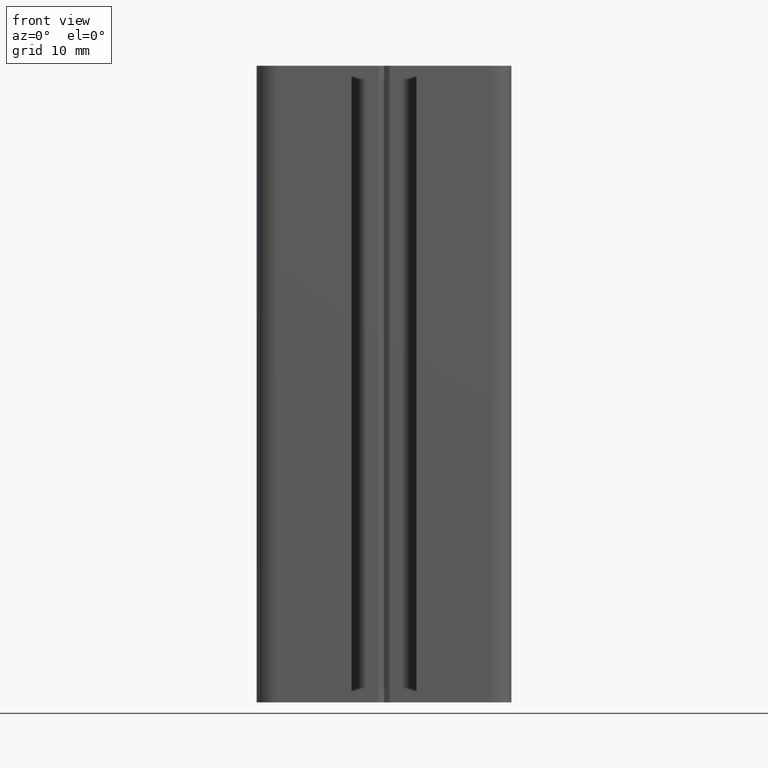
[diagram: clean part render]
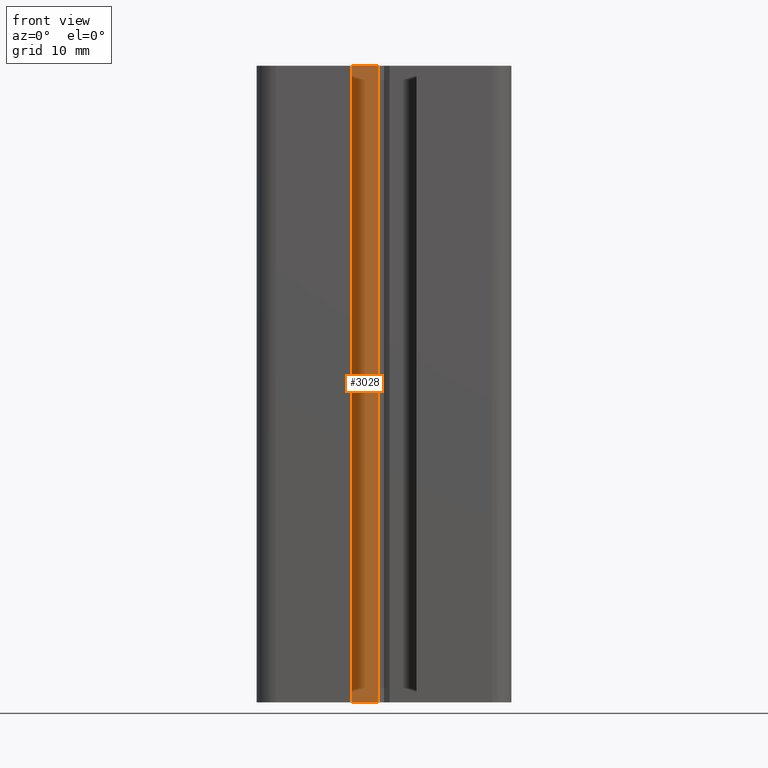
[diagram: same view with one face highlighted and labeled with its STEP entity id]
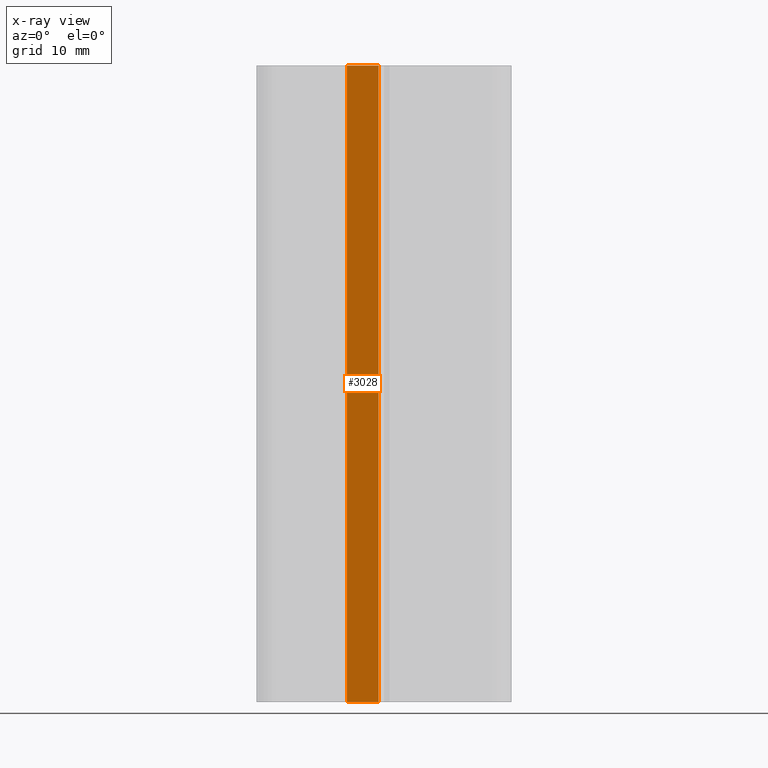
[diagram: x-ray of the same camera — body ghosted, the highlighted face saturated]
A machine part, front view. The second image highlights one B-rep face of the part: STEP entity #3028.
The next image is the same camera in x-ray: the body ghosted, the highlighted face saturated — about 0% of this face is hidden behind the body in this view.
In plain terms, the highlighted planar face has unit normal (0, 1, -0).
Its self-contained STEP definition (entity closure, byte-faithful):
#206 = DIRECTION ( 'NONE',  ( -0.0000000000000000000, -0.0000000000000000000, -1.000000000000000000 ) ) ;
#207 = VECTOR ( 'NONE', #206, 1000.000000000000000 ) ;
#208 = CARTESIAN_POINT ( 'NONE',  ( -0.8660263574587646600, -7.250000000000000000, 100.0000000000000000 ) ) ;
#211 = DIRECTION ( 'NONE',  ( -0.0000000000000000000, -0.0000000000000000000, -1.000000000000000000 ) ) ;
#212 = VECTOR ( 'NONE', #211, 1000.000000000000000 ) ;
#213 = CARTESIAN_POINT ( 'NONE',  ( -5.835786312549495300, -7.250000000000000000, 100.0000000000000000 ) ) ;
#214 = LINE ( 'NONE', #213, #212 ) ;
#216 = LINE ( 'NONE', #208, #207 ) ;
#1808 = CARTESIAN_POINT ( 'NONE',  ( -5.835786312549495300, -7.250000000000000000, 100.0000000000000000 ) ) ;
#1826 = DIRECTION ( 'NONE',  ( 1.000000000000000000, -0.0000000000000000000, -0.0000000000000000000 ) ) ;
#1827 = VECTOR ( 'NONE', #1826, 1000.000000000000000 ) ;
#1828 = CARTESIAN_POINT ( 'NONE',  ( -0.8660263574587646600, -7.250000000000000000, 100.0000000000000000 ) ) ;
#1829 = LINE ( 'NONE', #1828, #1827 ) ;
#1848 = CARTESIAN_POINT ( 'NONE',  ( -0.8660263574587646600, -7.250000000000000000, 100.0000000000000000 ) ) ;
#2495 = VERTEX_POINT ( 'NONE', #4931 ) ;
#2552 = EDGE_CURVE ( 'NONE', #2555, #2495, #4999, .T. ) ;
#2555 = VERTEX_POINT ( 'NONE', #5004 ) ;
#2990 = ORIENTED_EDGE ( 'NONE', *, *, #3022, .T. ) ;
#2995 = EDGE_LOOP ( 'NONE', ( #3029, #3027, #3007, #2990 ) ) ;
#3007 = ORIENTED_EDGE ( 'NONE', *, *, #5586, .F. ) ;
#3022 = EDGE_CURVE ( 'NONE', #5565, #2555, #214, .T. ) ;
#3026 = EDGE_CURVE ( 'NONE', #5577, #2495, #216, .T. ) ;
#3027 = ORIENTED_EDGE ( 'NONE', *, *, #3026, .F. ) ;
#3028 = ADVANCED_FACE ( 'NONE', ( #5551 ), #5084, .F. ) ;
#3029 = ORIENTED_EDGE ( 'NONE', *, *, #2552, .T. ) ;
#4931 = CARTESIAN_POINT ( 'NONE',  ( -0.8660263574587646600, -7.250000000000000000, 0.0000000000000000000 ) ) ;
#4991 = DIRECTION ( 'NONE',  ( 1.000000000000000000, -0.0000000000000000000, -0.0000000000000000000 ) ) ;
#4992 = VECTOR ( 'NONE', #4991, 1000.000000000000000 ) ;
#4999 = LINE ( 'NONE', #5015, #4992 ) ;
#5004 = CARTESIAN_POINT ( 'NONE',  ( -5.835786312549495300, -7.250000000000000000, 0.0000000000000000000 ) ) ;
#5015 = CARTESIAN_POINT ( 'NONE',  ( -0.8660263574587646600, -7.250000000000000000, 0.0000000000000000000 ) ) ;
#5079 = DIRECTION ( 'NONE',  ( 0.0000000000000000000, 0.0000000000000000000, 1.000000000000000000 ) ) ;
#5080 = DIRECTION ( 'NONE',  ( 0.0000000000000000000, 1.000000000000000000, -0.0000000000000000000 ) ) ;
#5081 = CARTESIAN_POINT ( 'NONE',  ( -0.8660263574587646600, -7.250000000000000000, 100.0000000000000000 ) ) ;
#5083 = AXIS2_PLACEMENT_3D ( 'NONE', #5081, #5080, #5079 ) ;
#5084 = PLANE ( 'NONE',  #5083 ) ;
#5551 = FACE_OUTER_BOUND ( 'NONE', #2995, .T. ) ;
#5565 = VERTEX_POINT ( 'NONE', #1808 ) ;
#5577 = VERTEX_POINT ( 'NONE', #1848 ) ;
#5586 = EDGE_CURVE ( 'NONE', #5565, #5577, #1829, .T. ) ;